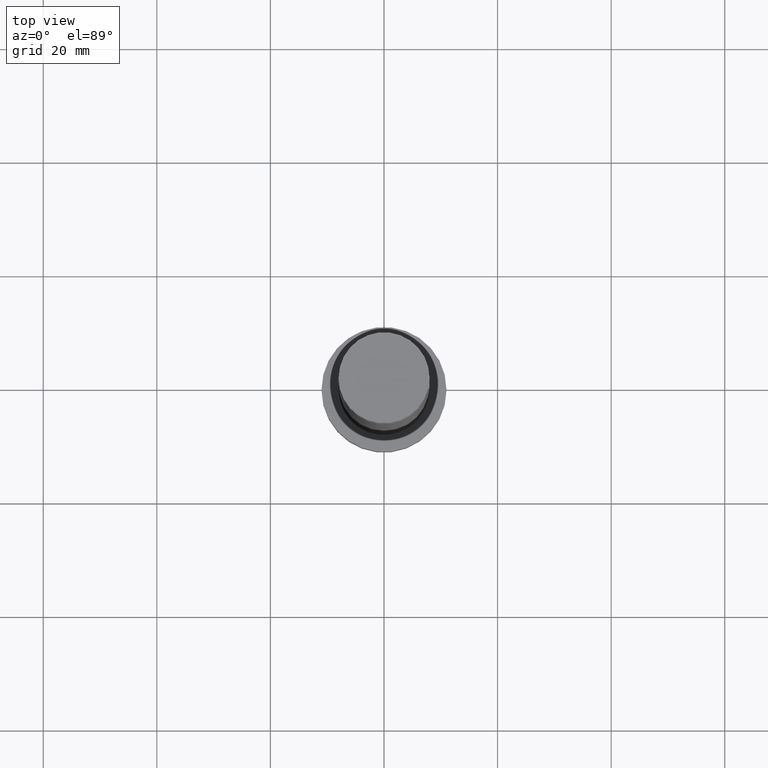
[diagram: clean part render]
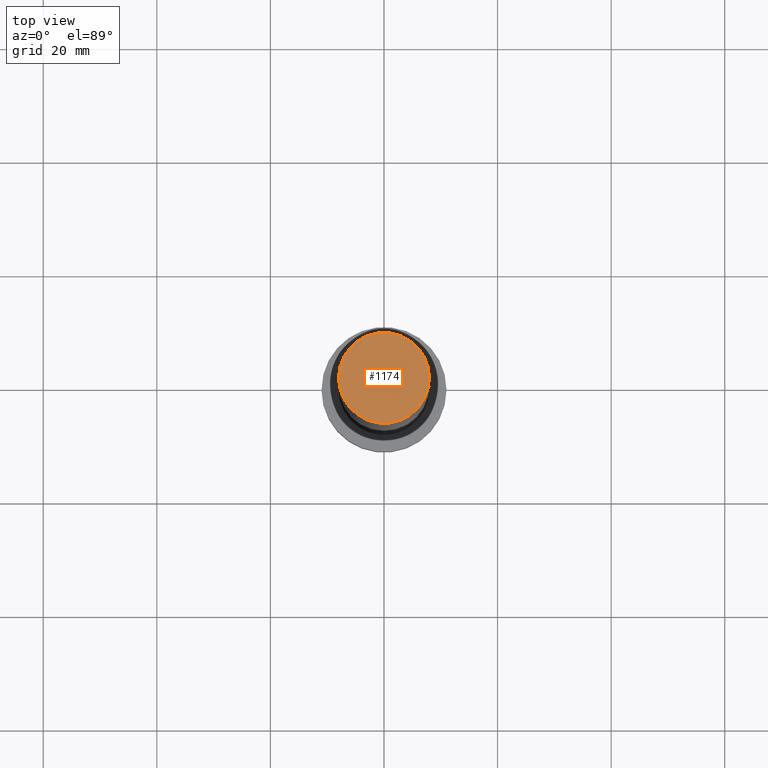
[diagram: same view with one face highlighted and labeled with its STEP entity id]
A machine part, top view. The second image highlights one B-rep face of the part: STEP entity #1174.
In plain terms, the highlighted planar face has unit normal (0, 0, 1).
Its self-contained STEP definition (entity closure, byte-faithful):
#100 = CIRCLE ( 'NONE', #1424, 8.000000000000000000 ) ;
#113 = AXIS2_PLACEMENT_3D ( 'NONE', #1518, #157, #1278 ) ;
#157 = DIRECTION ( 'NONE',  ( 0.000000000000000000, 0.000000000000000000, 1.000000000000000000 ) ) ;
#165 = PLANE ( 'NONE',  #113 ) ;
#172 = FACE_OUTER_BOUND ( 'NONE', #1185, .T. ) ;
#176 = EDGE_CURVE ( 'NONE', #333, #1159, #100, .T. ) ;
#183 = DIRECTION ( 'NONE',  ( 1.000000000000000000, 0.000000000000000000, 0.000000000000000000 ) ) ;
#333 = VERTEX_POINT ( 'NONE', #431 ) ;
#417 = CARTESIAN_POINT ( 'NONE',  ( 0.000000000000000000, 0.000000000000000000, 125.0000000000000000 ) ) ;
#431 = CARTESIAN_POINT ( 'NONE',  ( 8.000000000000000000, 9.797174393178825657E-16, 125.0000000000000000 ) ) ;
#433 = ORIENTED_EDGE ( 'NONE', *, *, #176, .T. ) ;
#537 = AXIS2_PLACEMENT_3D ( 'NONE', #417, #800, #678 ) ;
#588 = ORIENTED_EDGE ( 'NONE', *, *, #844, .T. ) ;
#678 = DIRECTION ( 'NONE',  ( 1.000000000000000000, 0.000000000000000000, 0.000000000000000000 ) ) ;
#800 = DIRECTION ( 'NONE',  ( 0.000000000000000000, 0.000000000000000000, 1.000000000000000000 ) ) ;
#844 = EDGE_CURVE ( 'NONE', #1159, #333, #1027, .T. ) ;
#952 = DIRECTION ( 'NONE',  ( 0.000000000000000000, 0.000000000000000000, 1.000000000000000000 ) ) ;
#1027 = CIRCLE ( 'NONE', #537, 8.000000000000000000 ) ;
#1159 = VERTEX_POINT ( 'NONE', #1253 ) ;
#1167 = CARTESIAN_POINT ( 'NONE',  ( 0.000000000000000000, 0.000000000000000000, 125.0000000000000000 ) ) ;
#1174 = ADVANCED_FACE ( 'NONE', ( #172 ), #165, .T. ) ;
#1185 = EDGE_LOOP ( 'NONE', ( #588, #433 ) ) ;
#1253 = CARTESIAN_POINT ( 'NONE',  ( -8.000000000000000000, 0.000000000000000000, 125.0000000000000000 ) ) ;
#1278 = DIRECTION ( 'NONE',  ( 1.000000000000000000, 0.000000000000000000, -0.000000000000000000 ) ) ;
#1424 = AXIS2_PLACEMENT_3D ( 'NONE', #1167, #952, #183 ) ;
#1518 = CARTESIAN_POINT ( 'NONE',  ( 0.000000000000000000, 0.000000000000000000, 125.0000000000000000 ) ) ;